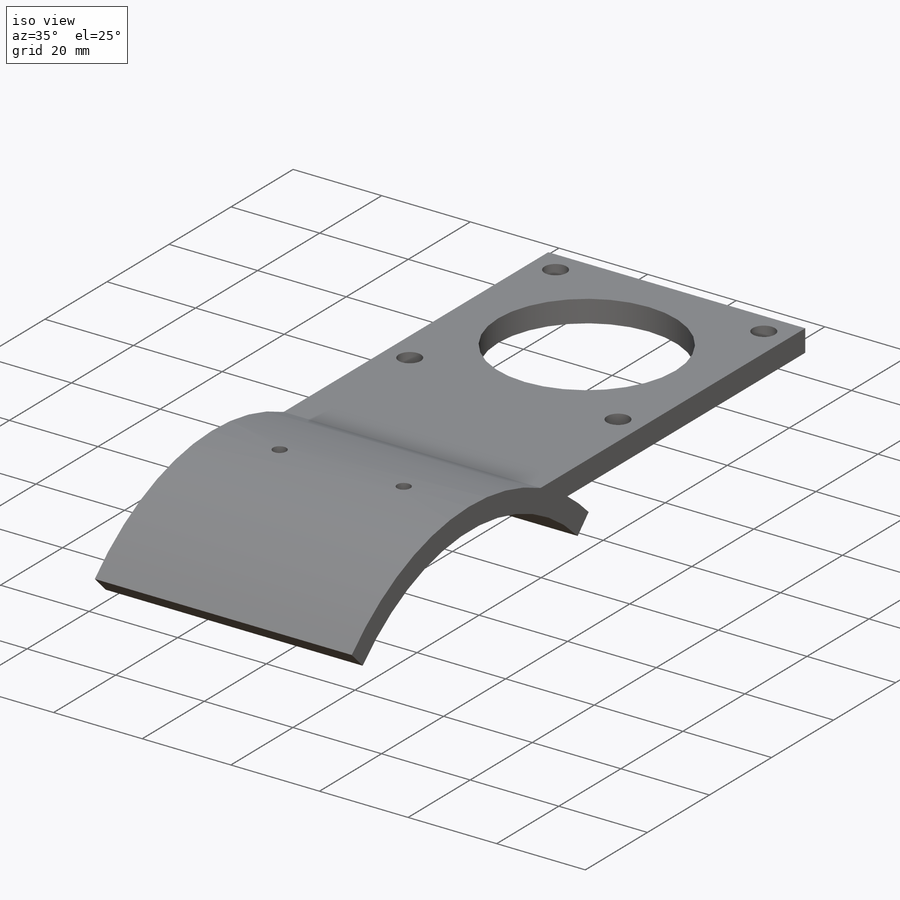
[diagram: iso view]
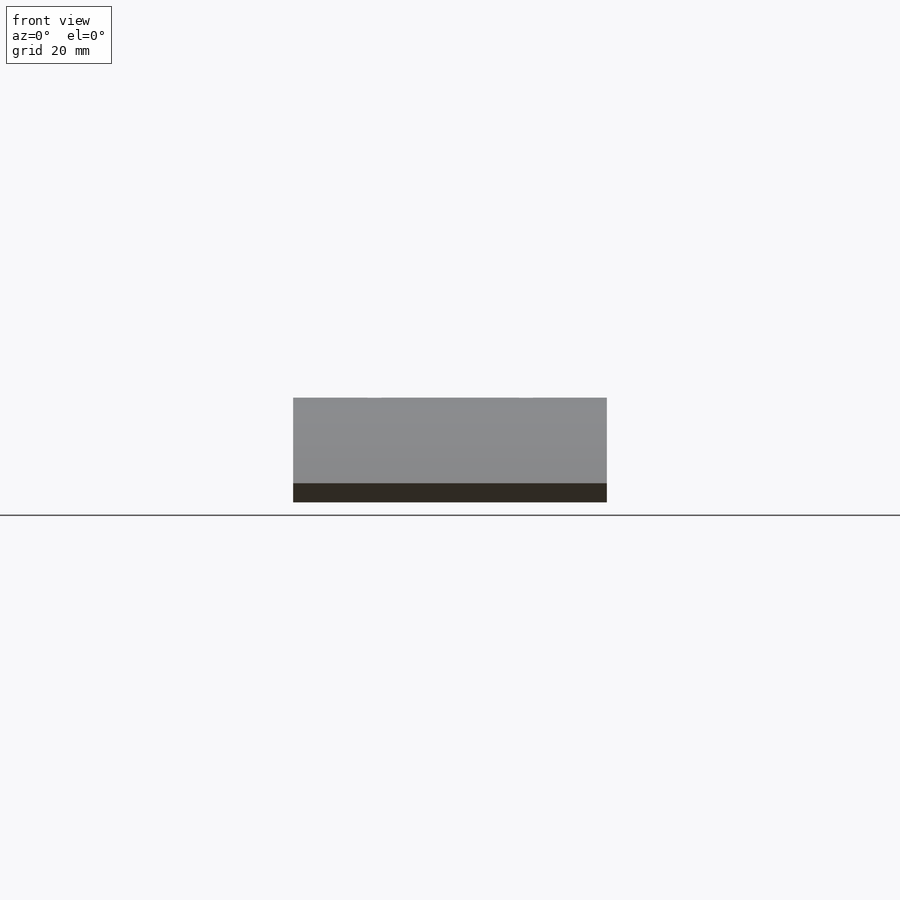
[diagram: front view]
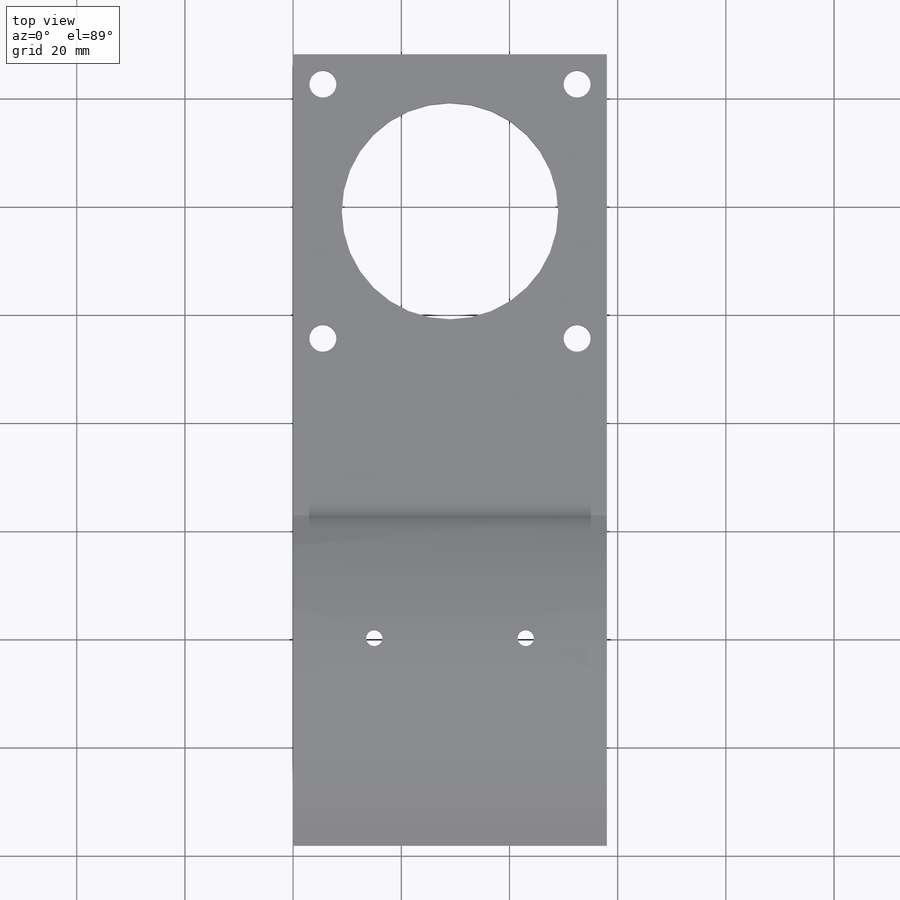
[diagram: top view]
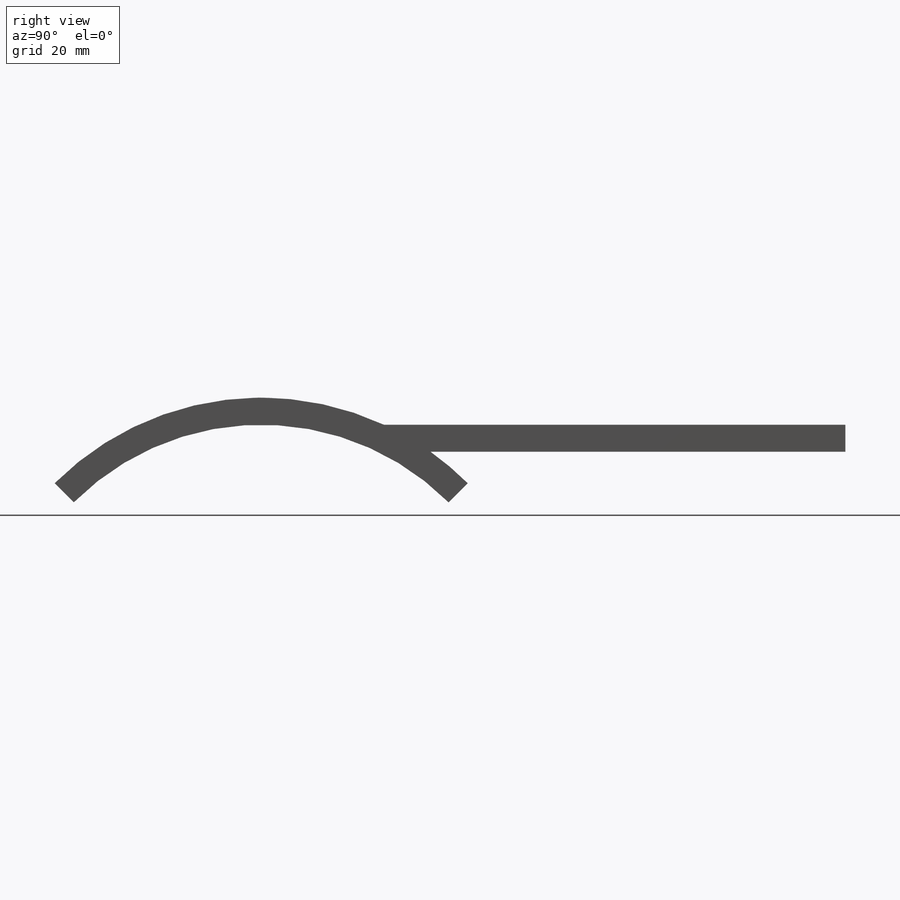
[diagram: right view]
SOLIDWORKS PART (.sldprt)
format: sldprt  version: not decoded by parser v0  size: 177,152 bytes
history: native  units: mm
features: sketch x3, cut_extrude x2, material x1, extrude x1 (+12 scaffold rows collapsed)
feature tree (19):
  scaffold x12  (default folders/planes/origin — collapsed)
  material  "Material <not specified>"
  sketch  "Sketch5"  dims[c1.D2=49.0mm c1.D1=49.0mm c2.D2=~34.065182mm c2.D3=108.0mm c2.D4=~21.036186mm c2.D5=5.0mm c2.D1=5.0mm c3.D2=~35.103473deg c4.D2=5.0mm c4.D4=5.0mm]
  extrude  "Boss-Extrude2"  Depth=58mm
  sketch  "Sketch6"  dims[c1.D4=5.0mm c1.D5=40.0mm c1.D1=5.5mm c1.D2=5.5mm c1.D3=29.0mm c2.D4=29.0mm]
  cut_extrude  "Cut-Extrude3"  Depth=58mm
  sketch  "Sketch7"  dims[c1.D2=3.0mm c1.D1=15.0mm c2.D2=~9.032389mm]
  cut_extrude  "Cut-Extrude4"  Depth=58mm
decode coverage: 6 of 6 modeling features carry decoded parameters
note: ~ marks probable driven/reference dimensions
note: suppression state not decoded; provenance and decode notes live in map.json
